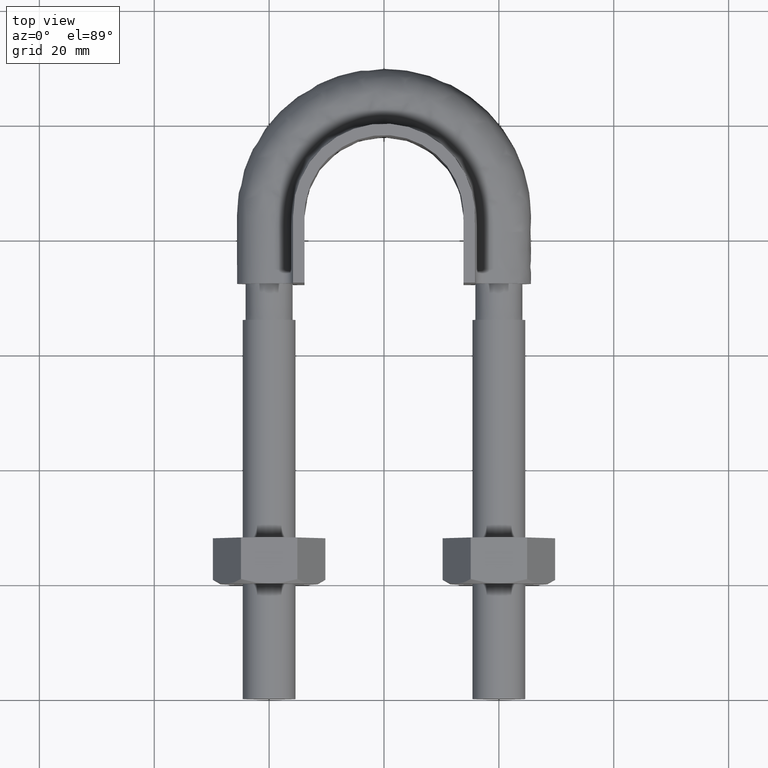
[diagram: clean part render]
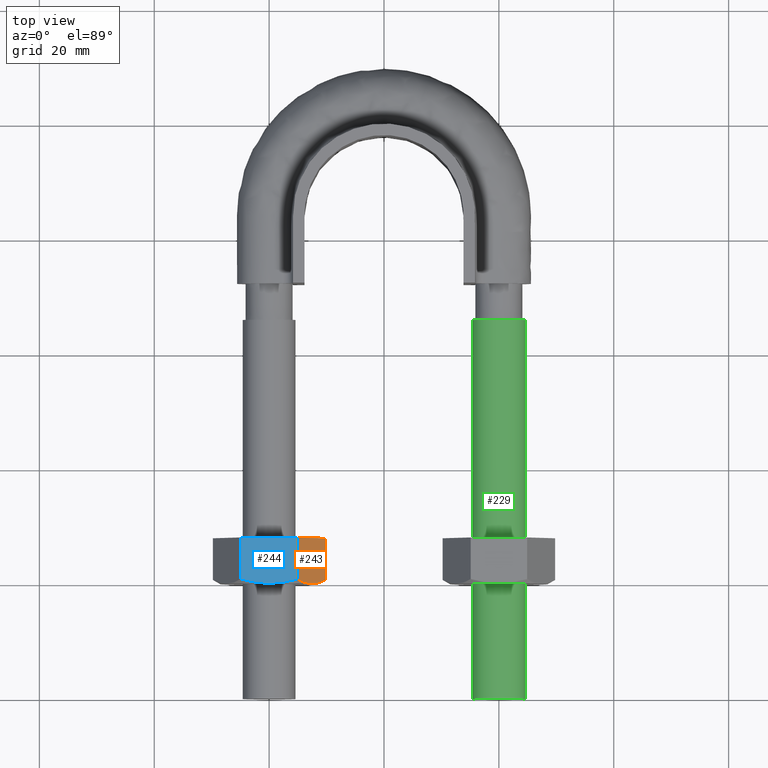
[diagram: same view with three faces highlighted in distinct colors, each labeled with its STEP entity id]
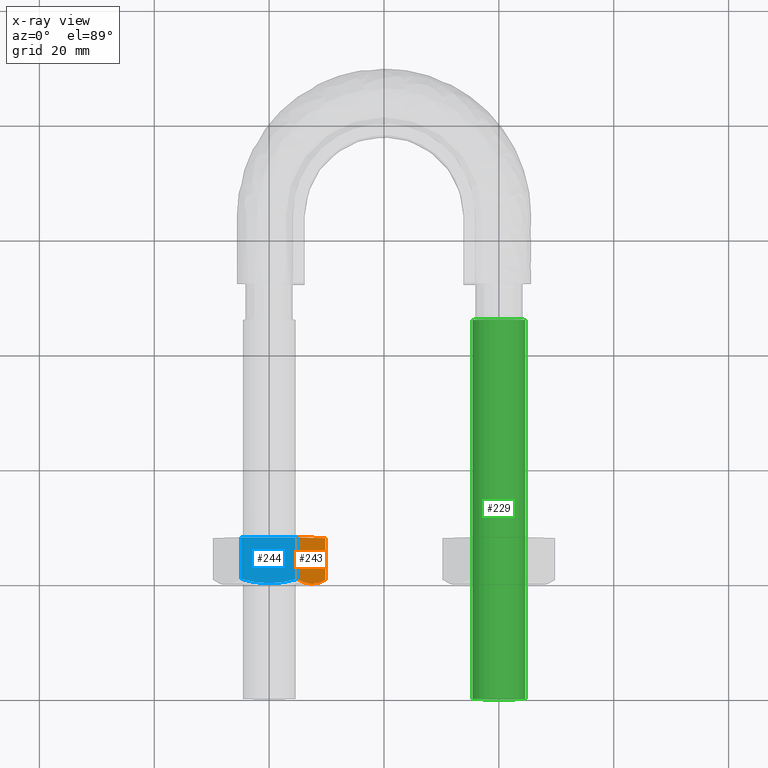
[diagram: x-ray of the same camera — body ghosted, the three highlighted faces saturated]
A machine part, top view with three faces highlighted in distinct colors.
The next image is the same camera in x-ray (body ghosted, the three faces saturated) — at least one of them is partly hidden behind the body in this view.
Their STEP definitions:

[orange] entity #243 — the highlighted planar face has unit normal (-0.866, 0, -0.5).
#243 = ADVANCED_FACE( '', ( #342 ), #343, .F. );
#342 = FACE_OUTER_BOUND( '', #1364, .T. );
#343 = PLANE( '', #1365 );
#1364 = EDGE_LOOP( '', ( #1633, #1634, #1635, #1636, #1637 ) );
#1365 = AXIS2_PLACEMENT_3D( '', #1638, #1639, #1640 );
#1633 = ORIENTED_EDGE( '', *, *, #1962, .F. );
#1634 = ORIENTED_EDGE( '', *, *, #1967, .F. );
#1635 = ORIENTED_EDGE( '', *, *, #1961, .F. );
#1636 = ORIENTED_EDGE( '', *, *, #1958, .F. );
#1637 = ORIENTED_EDGE( '', *, *, #1968, .F. );
#1638 = CARTESIAN_POINT( '', ( -15.0925227118882, 28.0000000000000, 8.50000000000000 ) );
#1639 = DIRECTION( '', ( -0.866025403784439, 4.54831243663965E-016, -0.500000000000000 ) );
#1640 = DIRECTION( '', ( -0.500000000000000, 1.91894260162175E-016, 0.866025403784439 ) );
#1958 = EDGE_CURVE( '', #2124, #2106, #2126, .T. );
#1961 = EDGE_CURVE( '', #2106, #2127, #2131, .F. );
#1962 = EDGE_CURVE( '', #2084, #2132, #2133, .T. );
#1967 = EDGE_CURVE( '', #2127, #2084, #2139, .T. );
#1968 = EDGE_CURVE( '', #2132, #2124, #2140, .T. );
#2084 = VERTEX_POINT( '', #2496 );
#2106 = VERTEX_POINT( '', #2533 );
#2124 = VERTEX_POINT( '', #2555 );
#2126 = LINE( '', #2557, #2558 );
#2127 = VERTEX_POINT( '', #2559 );
#2131 = LINE( '', #2564, #2565 );
#2132 = VERTEX_POINT( '', #2566 );
#2133 = B_SPLINE_CURVE_WITH_KNOTS( '', 3, ( #2567, #2568, #2569, #2570, #2571, #2572, #2573, #2574 ), .UNSPECIFIED., .F., .F., ( 4, 2, 2, 4 ), ( 0.00493529902949373, 0.00616408349151779, 0.00739286795354186, 0.00985043687758998 ), .UNSPECIFIED. );
#2139 = B_SPLINE_CURVE_WITH_KNOTS( '', 3, ( #2591, #2592, #2593, #2594, #2595, #2596 ), .UNSPECIFIED., .F., .F., ( 4, 2, 4 ), ( 7.17194508351640E-007, 0.00246800811200104, 0.00493529902949373 ), .UNSPECIFIED. );
#2140 = LINE( '', #2597, #2598 );
#2496 = CARTESIAN_POINT( '', ( -12.6387840678323, 20.0000000000000, 4.25000000000000 ) );
#2533 = CARTESIAN_POINT( '', ( -10.2000343881808, 28.0000000000000, 0.0259616479013809 ) );
#2555 = CARTESIAN_POINT( '', ( -15.0775337474837, 28.0000000000000, 8.47403835209862 ) );
#2557 = CARTESIAN_POINT( '', ( -15.0887840678323, 28.0000000000000, 8.49352447854375 ) );
#2558 = VECTOR( '', #2892, 1000.00000000000 );
#2559 = CARTESIAN_POINT( '', ( -10.2000343881808, 20.7505553499465, 0.0259616479013831 ) );
#2564 = CARTESIAN_POINT( '', ( -10.2000343881808, 28.0000000000000, 0.0259616479013835 ) );
#2565 = VECTOR( '', #2897, 1000.00000000000 );
#2566 = CARTESIAN_POINT( '', ( -15.0775337474837, 20.7505553499465, 8.47403835209862 ) );
#2567 = CARTESIAN_POINT( '', ( -12.6387840678323, 20.0000000000000, 4.25000000000000 ) );
#2568 = CARTESIAN_POINT( '', ( -12.8456388817077, 20.0000000000000, 4.60828304742251 ) );
#2569 = CARTESIAN_POINT( '', ( -13.0535274786335, 20.0177112141220, 4.96835665961217 ) );
#2570 = CARTESIAN_POINT( '', ( -13.4647835686610, 20.0863020976799, 5.68067310246197 ) );
#2571 = CARTESIAN_POINT( '', ( -13.6690446268307, 20.1371114863339, 6.03446363321955 ) );
#2572 = CARTESIAN_POINT( '', ( -14.2782179102226, 20.3331491064655, 7.08958271066799 ) );
#2573 = CARTESIAN_POINT( '', ( -14.6795336334359, 20.5218250443850, 7.78468193314962 ) );
#2574 = CARTESIAN_POINT( '', ( -15.0775337474837, 20.7505553499465, 8.47403835209862 ) );
#2591 = CARTESIAN_POINT( '', ( -10.2000343881808, 20.7505553499465, 0.0259616479013828 ) );
#2592 = CARTESIAN_POINT( '', ( -10.5990861549529, 20.5212206605155, 0.717139582800704 ) );
#2593 = CARTESIAN_POINT( '', ( -11.0010202481457, 20.3324529479805, 1.41330985350472 ) );
#2594 = CARTESIAN_POINT( '', ( -11.8131657095142, 20.0714150925759, 2.81998705573153 ) );
#2595 = CARTESIAN_POINT( '', ( -12.2234378299136, 20.0000000000000, 3.53059921319232 ) );
#2596 = CARTESIAN_POINT( '', ( -12.6387840678323, 20.0000000000000, 4.25000000000000 ) );
#2597 = CARTESIAN_POINT( '', ( -15.0775337474837, 28.0000000000000, 8.47403835209862 ) );
#2598 = VECTOR( '', #2902, 1000.00000000000 );
#2892 = DIRECTION( '', ( 0.500000000000000, -1.91894260162175E-016, -0.866025403784439 ) );
#2897 = DIRECTION( '', ( 4.89842541528951E-016, 1.00000000000000, 6.12303176911189E-017 ) );
#2902 = DIRECTION( '', ( 4.89842541528951E-016, 1.00000000000000, 6.12303176911189E-017 ) );

[blue] entity #244 — the highlighted planar face has unit normal (0, 0, -1).
#244 = ADVANCED_FACE( '', ( #344 ), #345, .F. );
#344 = FACE_OUTER_BOUND( '', #1366, .T. );
#345 = PLANE( '', #1367 );
#1366 = EDGE_LOOP( '', ( #1641, #1642, #1643, #1644, #1645 ) );
#1367 = AXIS2_PLACEMENT_3D( '', #1646, #1647, #1648 );
#1641 = ORIENTED_EDGE( '', *, *, #1969, .F. );
#1642 = ORIENTED_EDGE( '', *, *, #1964, .F. );
#1643 = ORIENTED_EDGE( '', *, *, #1970, .F. );
#1644 = ORIENTED_EDGE( '', *, *, #1956, .F. );
#1645 = ORIENTED_EDGE( '', *, *, #1971, .F. );
#1646 = CARTESIAN_POINT( '', ( -24.9074772881118, 28.0000000000000, 8.50000000000000 ) );
#1647 = DIRECTION( '', ( 0.000000000000000, 6.12303176911189E-017, -1.00000000000000 ) );
#1648 = DIRECTION( '', ( -1.00000000000000, 4.89842541528951E-016, 2.99932144364427E-032 ) );
#1956 = EDGE_CURVE( '', #2120, #2122, #2123, .T. );
#1964 = EDGE_CURVE( '', #2134, #2083, #2136, .T. );
#1969 = EDGE_CURVE( '', #2083, #2141, #2142, .T. );
#1970 = EDGE_CURVE( '', #2122, #2134, #2143, .F. );
#1971 = EDGE_CURVE( '', #2141, #2120, #2144, .T. );
#2083 = VERTEX_POINT( '', #2495 );
#2120 = VERTEX_POINT( '', #2550 );
#2122 = VERTEX_POINT( '', #2552 );
#2123 = LINE( '', #2553, #2554 );
#2134 = VERTEX_POINT( '', #2575 );
#2136 = B_SPLINE_CURVE_WITH_KNOTS( '', 3, ( #2577, #2578, #2579, #2580, #2581, #2582 ), .UNSPECIFIED., .F., .F., ( 4, 2, 4 ), ( 4.83064900408916E-007, 0.00246777364959070, 0.00493506423428099 ), .UNSPECIFIED. );
#2141 = VERTEX_POINT( '', #2599 );
#2142 = B_SPLINE_CURVE_WITH_KNOTS( '', 3, ( #2600, #2601, #2602, #2603, #2604, #2605, #2606, #2607 ), .UNSPECIFIED., .F., .F., ( 4, 2, 2, 4 ), ( 0.00493506423428099, 0.00616384870526321, 0.00739263317624542, 0.00985020211820987 ), .UNSPECIFIED. );
#2143 = LINE( '', #2608, #2609 );
#2144 = LINE( '', #2610, #2611 );
#2495 = CARTESIAN_POINT( '', ( -20.0000000000000, 20.0000000000000, 8.50000000000000 ) );
#2550 = CARTESIAN_POINT( '', ( -24.8774993593029, 28.0000000000000, 8.50000000000000 ) );
#2552 = CARTESIAN_POINT( '', ( -15.1225006406971, 28.0000000000000, 8.50000000000000 ) );
#2553 = CARTESIAN_POINT( '', ( -15.1000000000000, 28.0000000000000, 8.50000000000000 ) );
#2554 = VECTOR( '', #2888, 1000.00000000000 );
#2575 = CARTESIAN_POINT( '', ( -15.1225006406971, 20.7505553499465, 8.50000000000000 ) );
#2577 = CARTESIAN_POINT( '', ( -15.1225006406971, 20.7505553499465, 8.50000000000000 ) );
#2578 = CARTESIAN_POINT( '', ( -15.9206053692588, 20.5212203171278, 8.50000000000000 ) );
#2579 = CARTESIAN_POINT( '', ( -16.7244743057427, 20.3324525365440, 8.50000000000000 ) );
#2580 = CARTESIAN_POINT( '', ( -18.3487653825440, 20.0714148540586, 8.50000000000000 ) );
#2581 = CARTESIAN_POINT( '', ( -19.1693090167582, 20.0000000000000, 8.50000000000000 ) );
#2582 = CARTESIAN_POINT( '', ( -20.0000000000000, 20.0000000000000, 8.50000000000000 ) );
#2599 = CARTESIAN_POINT( '', ( -24.8774993593029, 20.7505553499465, 8.50000000000000 ) );
#2600 = CARTESIAN_POINT( '', ( -20.0000000000000, 20.0000000000000, 8.50000000000000 ) );
#2601 = CARTESIAN_POINT( '', ( -20.4137089432134, 20.0000000000000, 8.50000000000000 ) );
#2602 = CARTESIAN_POINT( '', ( -20.8294869254275, 20.0177112081763, 8.50000000000000 ) );
#2603 = CARTESIAN_POINT( '', ( -21.6519999770223, 20.0863021936212, 8.50000000000000 ) );
#2604 = CARTESIAN_POINT( '', ( -22.0605223337830, 20.1371116504194, 8.50000000000000 ) );
#2605 = CARTESIAN_POINT( '', ( -23.2788691256670, 20.3331494013913, 8.50000000000000 ) );
#2606 = CARTESIAN_POINT( '', ( -24.0815000650892, 20.5218253127355, 8.50000000000000 ) );
#2607 = CARTESIAN_POINT( '', ( -24.8774993593029, 20.7505553499465, 8.50000000000000 ) );
#2608 = CARTESIAN_POINT( '', ( -15.1225006406971, 28.0000000000000, 8.50000000000000 ) );
#2609 = VECTOR( '', #2903, 1000.00000000000 );
#2610 = CARTESIAN_POINT( '', ( -24.8774993593029, 28.0000000000000, 8.50000000000000 ) );
#2611 = VECTOR( '', #2904, 1000.00000000000 );
#2888 = DIRECTION( '', ( 1.00000000000000, -4.89842541528951E-016, 0.000000000000000 ) );
#2903 = DIRECTION( '', ( 4.89842541528951E-016, 1.00000000000000, 6.12303176911189E-017 ) );
#2904 = DIRECTION( '', ( 4.89842541528951E-016, 1.00000000000000, 6.12303176911189E-017 ) );

[green] entity #229 — the highlighted cylindrical surface (bore or boss wall) has radius 4.6 mm, axis along (0, 1, 0).
#229 = ADVANCED_FACE( '', ( #308, #309 ), #310, .T. );
#308 = FACE_OUTER_BOUND( '', #1330, .T. );
#309 = FACE_OUTER_BOUND( '', #1331, .T. );
#310 = CYLINDRICAL_SURFACE( '', #1332, 4.60000000000000 );
#1330 = EDGE_LOOP( '', ( #1535 ) );
#1331 = EDGE_LOOP( '', ( #1536 ) );
#1332 = AXIS2_PLACEMENT_3D( '', #1537, #1538, #1539 );
#1535 = ORIENTED_EDGE( '', *, *, #1927, .T. );
#1536 = ORIENTED_EDGE( '', *, *, #1928, .F. );
#1537 = CARTESIAN_POINT( '', ( 20.0000000000000, 66.0000000000000, 4.04120096761384E-015 ) );
#1538 = DIRECTION( '', ( 4.89842541528951E-016, 1.00000000000000, 6.12303176911189E-017 ) );
#1539 = DIRECTION( '', ( 1.00000000000000, -4.89842541528951E-016, -2.24949108273321E-032 ) );
#1927 = EDGE_CURVE( '', #2067, #2067, #2068, .T. );
#1928 = EDGE_CURVE( '', #2069, #2069, #2070, .T. );
#2067 = VERTEX_POINT( '', #2467 );
#2068 = CIRCLE( '', #2468, 4.60000000000000 );
#2069 = VERTEX_POINT( '', #2469 );
#2070 = CIRCLE( '', #2470, 4.60000000000000 );
#2467 = CARTESIAN_POINT( '', ( 24.6000000000000, 66.0000000000000, 4.04120096761384E-015 ) );
#2468 = AXIS2_PLACEMENT_3D( '', #2825, #2826, #2827 );
#2469 = CARTESIAN_POINT( '', ( 24.6000000000000, -1.20501265216122E-014, -5.53374806352369E-031 ) );
#2470 = AXIS2_PLACEMENT_3D( '', #2828, #2829, #2830 );
#2825 = CARTESIAN_POINT( '', ( 20.0000000000000, 66.0000000000000, 4.04120096761384E-015 ) );
#2826 = DIRECTION( '', ( -4.89842541528951E-016, -1.00000000000000, -6.12303176911189E-017 ) );
#2827 = DIRECTION( '', ( 1.00000000000000, -4.89842541528951E-016, -2.24949108273321E-032 ) );
#2828 = CARTESIAN_POINT( '', ( 20.0000000000000, -9.79685083057902E-015, -4.49898216546641E-031 ) );
#2829 = DIRECTION( '', ( -4.89842541528951E-016, -1.00000000000000, -6.12303176911189E-017 ) );
#2830 = DIRECTION( '', ( 1.00000000000000, -4.89842541528951E-016, -2.24949108273321E-032 ) );